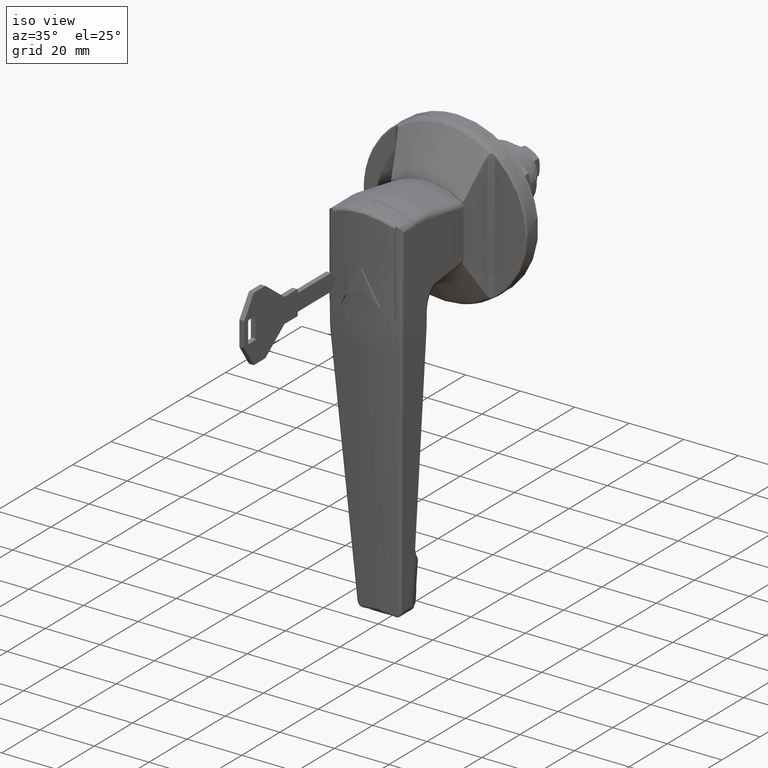
[diagram: clean part render]
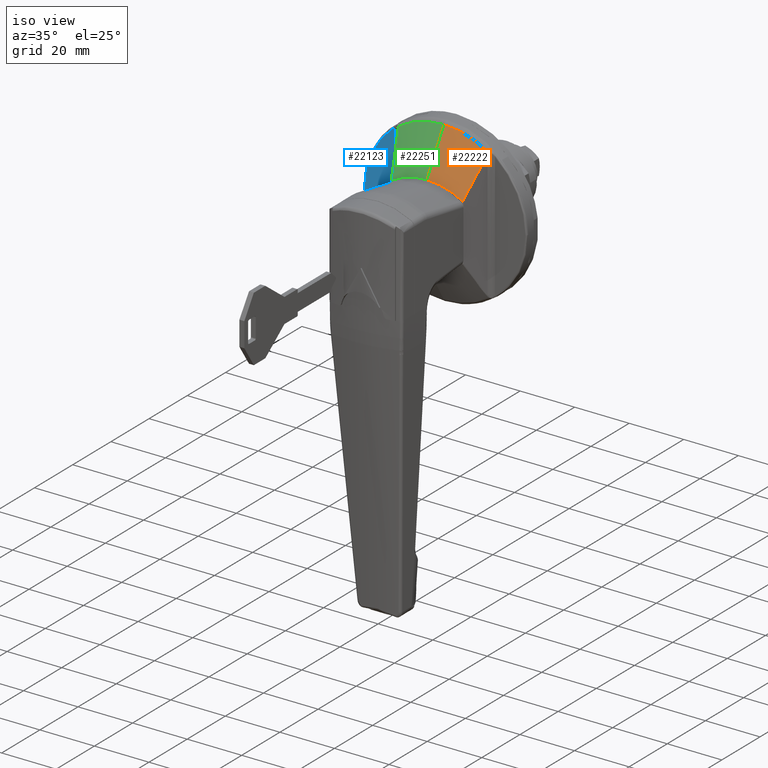
[diagram: same view with three faces highlighted in distinct colors, each labeled with its STEP entity id]
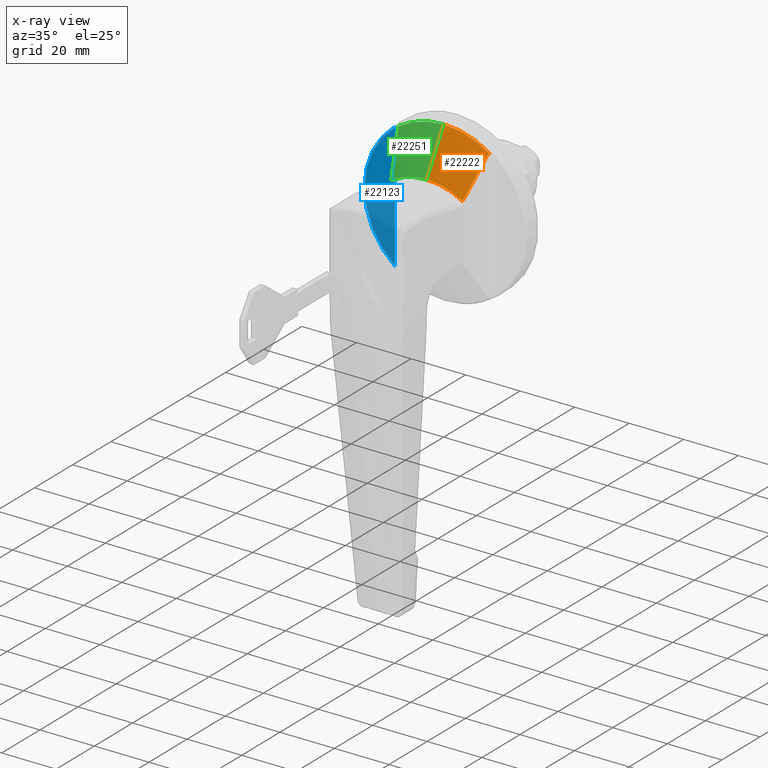
[diagram: x-ray of the same camera — body ghosted, the three highlighted faces saturated]
A machine part, iso view with three faces highlighted in distinct colors.
The next image is the same camera in x-ray (body ghosted, the three faces saturated) — at least one of them is partly hidden behind the body in this view.
Their STEP definitions:

[orange] entity #22222 — the highlighted face is a freeform B-spline surface patch.
#17715=CARTESIAN_POINT('',(-14.479337245030599,-6.288373E-015,14.118387861728261));
#17716=VERTEX_POINT('',#17715);
#17850=CARTESIAN_POINT('',(-14.447015934958740,-13.068452381995820,10.469231712005859));
#17851=VERTEX_POINT('',#17850);
#17865=CARTESIAN_POINT('',(-14.479337245030599,-6.288373E-015,14.118387861728261));
#17866=CARTESIAN_POINT('',(-14.479337263543490,-0.035735273126153,14.118387830712260));
#17867=CARTESIAN_POINT('',(-14.479336690088770,-0.071866858965892,14.118311511213809));
#17868=CARTESIAN_POINT('',(-14.479334467533681,-0.143709660119662,14.118006255532070));
#17869=CARTESIAN_POINT('',(-14.479329464685810,-0.251449471991203,14.117319539753540));
#17870=CARTESIAN_POINT('',(-14.479306078438640,-0.502671796708027,14.114116872654440));
#17871=CARTESIAN_POINT('',(-14.479212204205970,-1.004435341373926,14.101321233102651));
#17872=CARTESIAN_POINT('',(-14.479050111090681,-1.433354460517446,14.079433353181891));
#17873=CARTESIAN_POINT('',(-14.478614197807911,-2.289646584819604,14.021151579628819));
#17874=CARTESIAN_POINT('',(-14.478174892060700,-2.858448072226607,13.962970314704380));
#17875=CARTESIAN_POINT('',(-14.476977723609391,-3.991925136059909,13.807897652704460));
#17876=CARTESIAN_POINT('',(-14.476219934430960,-4.556600865009573,13.711007686155391));
#17877=CARTESIAN_POINT('',(-14.474821384778901,-5.400476907076799,13.536235746365040));
#17878=CARTESIAN_POINT('',(-14.474311614224041,-5.681111668699575,13.473087205553330));
#17879=CARTESIAN_POINT('',(-14.473203641887091,-6.239593992173101,13.337327171529310));
#17880=CARTESIAN_POINT('',(-14.472605111653641,-6.517647948377238,13.264674380472769));
#17881=CARTESIAN_POINT('',(-14.470669478754260,-7.348244417503577,13.032382528664600));
#17882=CARTESIAN_POINT('',(-14.469198614541320,-7.894461306897749,12.859186390527389));
#17883=CARTESIAN_POINT('',(-14.465875158982330,-8.971000193252996,12.477239018694281));
#17884=CARTESIAN_POINT('',(-14.464022053215210,-9.501519329385047,12.268432055344130));
#17885=CARTESIAN_POINT('',(-14.457845584175249,-11.069998082647750,11.588908147134880));
#17886=CARTESIAN_POINT('',(-14.452904385556350,-12.084994687746880,11.065354308721391));
#17887=CARTESIAN_POINT('',(-14.447015934958740,-13.068452381995820,10.469231712005859));
#17888=B_SPLINE_CURVE_WITH_KNOTS('',3,(#17865,#17866,#17867,#17868,#17869,#17870,#17871,#17872,#17873,#17874,#17875,#17876,#17877,#17878,#17879,#17880,#17881,#17882,#17883,#17884,#17885,#17886,#17887),.UNSPECIFIED.,.F.,.U.,(4,2,1,1,1,2,2,2,2,2,2,2,4),(0.0,0.007812500000000,0.015625000000000,0.031250000000000,0.062500000000000,0.125000000000000,0.250000000000000,0.375000000000000,0.437500000000000,0.500000000000000,0.625000000000000,0.750000000000000,1.0),.UNSPECIFIED.);
#17889=EDGE_CURVE('',#17716,#17851,#17888,.T.);
#19303=CARTESIAN_POINT('',(-5.626412422946280,-16.767151161594299,23.936080246098200));
#19304=VERTEX_POINT('',#19303);
#19675=CARTESIAN_POINT('',(-6.494066737415230,-16.192398107966149,22.909306063417699));
#19676=VERTEX_POINT('',#19675);
#19708=CARTESIAN_POINT('',(-6.494066737415230,-16.192398107966149,22.909306063417699));
#19709=CARTESIAN_POINT('',(-6.424669073770880,-16.220072393999470,23.007775305461841));
#19710=CARTESIAN_POINT('',(-6.354702153840161,-16.251524082387991,23.103856940331362));
#19711=CARTESIAN_POINT('',(-6.213427687926616,-16.323384023525250,23.290366459692439));
#19712=CARTESIAN_POINT('',(-6.142122185501899,-16.363776269459692,23.380804159612389));
#19713=CARTESIAN_POINT('',(-5.997863034308626,-16.455693039438380,23.554667275716920));
#19714=CARTESIAN_POINT('',(-5.924914193083493,-16.507179140138760,23.638116173003048));
#19715=CARTESIAN_POINT('',(-5.813873294990467,-16.595538278010270,23.756303401241482));
#19716=CARTESIAN_POINT('',(-5.776588147323723,-16.626860951215470,23.794525786446361));
#19717=CARTESIAN_POINT('',(-5.701372973897109,-16.694008976117271,23.868152115988060));
#19718=CARTESIAN_POINT('',(-5.663826746573515,-16.729495984640469,23.903176481008401));
#19719=CARTESIAN_POINT('',(-5.626412422946280,-16.767151161594299,23.936080246098200));
#19720=B_SPLINE_CURVE_WITH_KNOTS('',3,(#19708,#19709,#19710,#19711,#19712,#19713,#19714,#19715,#19716,#19717,#19718,#19719),.UNSPECIFIED.,.F.,.U.,(4,2,2,2,2,4),(0.0,0.250000000000001,0.500000000000001,0.750000000000002,0.875000000000001,1.0),.UNSPECIFIED.);
#19721=EDGE_CURVE('',#19676,#19304,#19720,.T.);
#19979=CARTESIAN_POINT('',(-14.447015934958740,-13.068452381995870,10.469231712005850));
#19980=CARTESIAN_POINT('',(-14.071443119798049,-13.217452616591240,10.953572287885930));
#19981=CARTESIAN_POINT('',(-13.713588035917390,-13.358383926442670,11.451621797199790));
#19982=CARTESIAN_POINT('',(-13.020178356388950,-13.630649370214620,12.464831776052421));
#19983=CARTESIAN_POINT('',(-12.684649753828340,-13.761947505672140,12.980018576630330));
#19984=CARTESIAN_POINT('',(-12.026345013776419,-14.019248352972451,14.020127427467941));
#19985=CARTESIAN_POINT('',(-11.703602501037221,-14.145228628753900,14.545077328030491));
#19986=CARTESIAN_POINT('',(-11.063905871242399,-14.394926912533450,15.599359615168821));
#19987=CARTESIAN_POINT('',(-10.746974566038130,-14.518632216727390,16.128722035384321));
#19988=CARTESIAN_POINT('',(-9.796925005214114,-14.889780169889240,17.717167491580060));
#19989=CARTESIAN_POINT('',(-9.164444515341181,-15.137273861161921,18.776859682195120));
#19990=CARTESIAN_POINT('',(-8.190413732009539,-15.520295132090780,20.347239966842459));
#19991=CARTESIAN_POINT('',(-7.861569147511784,-15.649914215912361,20.867540387358950));
#19992=CARTESIAN_POINT('',(-7.190110527857683,-15.915498251099850,21.897722566685211));
#19993=CARTESIAN_POINT('',(-6.847595742775003,-16.051418393352979,22.407679187665849));
#19994=CARTESIAN_POINT('',(-6.494066737415230,-16.192398107966149,22.909306063417699));
#19995=B_SPLINE_CURVE_WITH_KNOTS('',3,(#19979,#19980,#19981,#19982,#19983,#19984,#19985,#19986,#19987,#19988,#19989,#19990,#19991,#19992,#19993,#19994),.UNSPECIFIED.,.F.,.U.,(4,2,2,2,2,2,2,4),(0.0,0.125000000000000,0.250000000000000,0.375000000000000,0.500000000000000,0.750000000000001,0.875000000000000,1.0),.UNSPECIFIED.);
#19996=EDGE_CURVE('',#17851,#19676,#19995,.T.);
#21756=CARTESIAN_POINT('',(-5.581927654844491,-6.288373E-015,29.025042672511301));
#21757=VERTEX_POINT('',#21756);
#21758=CARTESIAN_POINT('',(-5.626412422946288,-16.767151161594288,23.936080246098179));
#21759=CARTESIAN_POINT('',(-5.624726983806986,-16.148189104809092,24.353625687414429));
#21760=CARTESIAN_POINT('',(-5.622789512429399,-15.516525124752629,24.745638578468832));
#21761=CARTESIAN_POINT('',(-5.618614159242171,-14.228671870370730,25.479640812196479));
#21762=CARTESIAN_POINT('',(-5.616376525951550,-13.572435116448551,25.821657167840328));
#21763=CARTESIAN_POINT('',(-5.611742373096118,-12.235463377118240,26.455968960190429));
#21764=CARTESIAN_POINT('',(-5.609350919085951,-11.554714914981609,26.748237079858640));
#21765=CARTESIAN_POINT('',(-5.605679384473238,-10.515020729400520,27.148947327590928));
#21766=CARTESIAN_POINT('',(-5.604443051077740,-10.165362813808940,27.276239616397241));
#21767=CARTESIAN_POINT('',(-5.602592839555324,-9.636198311964764,27.457684701808411));
#21768=CARTESIAN_POINT('',(-5.601976636856387,-9.458975342524969,27.516597614020860));
#21769=CARTESIAN_POINT('',(-5.600753990130843,-9.104284433330642,27.630828670383071));
#21770=CARTESIAN_POINT('',(-5.600146984073732,-8.926656675272799,27.686203215201630));
#21771=CARTESIAN_POINT('',(-5.597142484299140,-8.037120227922880,27.954456620331690));
#21772=CARTESIAN_POINT('',(-5.594837647149470,-7.321025065285979,28.141517611700291));
#21773=CARTESIAN_POINT('',(-5.590635873915720,-5.880149623792579,28.462081562276751));
#21774=CARTESIAN_POINT('',(-5.588738361980969,-5.155368704091980,28.595580561628118));
#21775=CARTESIAN_POINT('',(-5.585542267703501,-3.697213379618401,28.809588163248272));
#21776=CARTESIAN_POINT('',(-5.584242865677550,-2.963838743335603,28.890095326915549));
#21777=CARTESIAN_POINT('',(-5.582887836588102,-1.857295234888901,28.970890450409019));
#21778=CARTESIAN_POINT('',(-5.582535264718668,-1.487366063150442,28.991154582864919));
#21779=CARTESIAN_POINT('',(-5.582175214040379,-0.930836026798620,29.011461644530080));
#21780=CARTESIAN_POINT('',(-5.582037418777160,-0.652161836517862,29.019092259837318));
#21781=CARTESIAN_POINT('',(-5.581955342226830,-0.326321676295324,29.023553577120499));
#21782=CARTESIAN_POINT('',(-5.581934607800917,-0.163220917257886,29.024670208883311));
#21783=CARTESIAN_POINT('',(-5.581930141384058,-0.093281807508102,29.024909629709661));
#21784=CARTESIAN_POINT('',(-5.581928153710429,-0.046647107842052,29.025016054749020));
#21785=CARTESIAN_POINT('',(-5.581927664909836,-0.023119643418672,29.025042655647539));
#21786=CARTESIAN_POINT('',(-5.581927654844491,-6.288373E-015,29.025042672511301));
#21787=B_SPLINE_CURVE_WITH_KNOTS('',3,(#21758,#21759,#21760,#21761,#21762,#21763,#21764,#21765,#21766,#21767,#21768,#21769,#21770,#21771,#21772,#21773,#21774,#21775,#21776,#21777,#21778,#21779,#21780,#21781,#21782,#21783,#21784,#21785,#21786),.UNSPECIFIED.,.F.,.U.,(4,2,2,2,2,2,2,2,2,2,2,1,1,1,2,4),(0.0,0.125000000000000,0.249999999999999,0.374999999999999,0.437499999999999,0.468749999999999,0.499999999999999,0.624999999999999,0.749999999999999,0.875000000000000,0.937500000000000,0.968750000000000,0.984375000000000,0.992187500000000,0.996093750000000,1.0),.UNSPECIFIED.);
#21788=EDGE_CURVE('',#19304,#21757,#21787,.T.);
#22190=CARTESIAN_POINT('',(-14.532721702582300,-1.734813E-015,14.028947932846179));
#22191=CARTESIAN_POINT('',(-11.531328867489391,-1.765828E-015,19.057459489022811));
#22192=CARTESIAN_POINT('',(-8.529936032396112,-9.863557E-015,24.085971045199390));
#22193=CARTESIAN_POINT('',(-5.528543197303158,-1.076142E-014,29.114482601376011));
#22194=CARTESIAN_POINT('',(-14.532721702582300,-2.388344565596300,14.028947932846179));
#22195=CARTESIAN_POINT('',(-11.531328867489391,-2.890736111928984,19.057459489022811));
#22196=CARTESIAN_POINT('',(-8.529936032396112,-3.862540520718953,24.085971045199390));
#22197=CARTESIAN_POINT('',(-5.528543197303158,-3.968759771309034,29.114482601376011));
#22198=CARTESIAN_POINT('',(-14.532721702582300,-6.995748806893610,13.357207755784380));
#22199=CARTESIAN_POINT('',(-11.531328867489361,-8.321017822317584,18.012822210968331));
#22200=CARTESIAN_POINT('',(-8.529936032396078,-11.175738348988530,23.037453031837629));
#22201=CARTESIAN_POINT('',(-5.528543197303102,-11.613288624611460,27.636133909895189));
#22202=CARTESIAN_POINT('',(-14.532721702582300,-11.175390397023580,11.501370455693230));
#22203=CARTESIAN_POINT('',(-11.531328867489300,-13.018076428494281,15.292721152788550));
#22204=CARTESIAN_POINT('',(-8.529936032396037,-17.087709178349680,19.538301417988691));
#22205=CARTESIAN_POINT('',(-5.528543197303003,-18.076337027491419,23.459602483717561));
#22206=CARTESIAN_POINT('',(-14.532721702582290,-13.079241137636220,10.331886923993210));
#22207=CARTESIAN_POINT('',(-11.531328867489270,-15.108740564520859,13.636701333858831));
#22208=CARTESIAN_POINT('',(-8.529936032396014,-19.420936087994420,17.464166185532850));
#22209=CARTESIAN_POINT('',(-5.528543197302953,-20.773311134403301,20.852174061432621));
#22210=B_SPLINE_SURFACE_WITH_KNOTS('',3,3,((#22190,#22194,#22198,#22202,#22206),(#22191,#22195,#22199,#22203,#22207),(#22192,#22196,#22200,#22204,#22208),(#22193,#22197,#22201,#22205,#22209)),.UNSPECIFIED.,.F.,.F.,.U.,(4,4),(4,1,4),(0.0,17.579778096460370),(0.0,11.906279313927071,23.484874489073871),.UNSPECIFIED.);
#22211=CARTESIAN_POINT('',(-5.581927654844491,-6.288373E-015,29.025042672511301));
#22212=CARTESIAN_POINT('',(-14.479337245030599,-6.288373E-015,14.118387861728261));
#22213=QUASI_UNIFORM_CURVE('',1,(#22211,#22212),.UNSPECIFIED.,.F.,.U.);
#22214=EDGE_CURVE('',#21757,#17716,#22213,.T.);
#22215=ORIENTED_EDGE('',*,*,#22214,.T.);
#22216=ORIENTED_EDGE('',*,*,#17889,.T.);
#22217=ORIENTED_EDGE('',*,*,#19996,.T.);
#22218=ORIENTED_EDGE('',*,*,#19721,.T.);
#22219=ORIENTED_EDGE('',*,*,#21788,.T.);
#22220=EDGE_LOOP('',(#22215,#22216,#22217,#22218,#22219));
#22221=FACE_OUTER_BOUND('',#22220,.T.);
#22222=ADVANCED_FACE('',(#22221),#22210,.F.);

[blue] entity #22123 — the highlighted face is a freeform B-spline surface patch.
#18060=CARTESIAN_POINT('',(-4.999999999999890,18.363324249961149,23.008781742512902));
#18061=VERTEX_POINT('',#18060);
#18354=CARTESIAN_POINT('',(-4.999999999999890,29.487258555938499,-0.000188778149250));
#18355=VERTEX_POINT('',#18354);
#18369=CARTESIAN_POINT('',(-4.999999999999890,18.363324249961149,23.008781742512902));
#18370=CARTESIAN_POINT('',(-4.999999999999890,19.233466616690730,22.321083957854931));
#18371=CARTESIAN_POINT('',(-4.999999999999896,20.059096934249720,21.588531579325721));
#18372=CARTESIAN_POINT('',(-4.999999999999896,21.231833524156158,20.423488459077898));
#18373=CARTESIAN_POINT('',(-4.999999999999894,21.611769464047541,20.024080027251792));
#18374=CARTESIAN_POINT('',(-4.999999999999894,22.349546607538642,19.202998396159689));
#18375=CARTESIAN_POINT('',(-4.999999999999894,22.707501091525899,18.781181590726050));
#18376=CARTESIAN_POINT('',(-4.999999999999895,23.747021182880520,17.482695182936311));
#18377=CARTESIAN_POINT('',(-4.999999999999895,24.384096463364049,16.585970406472569));
#18378=CARTESIAN_POINT('',(-4.999999999999896,25.550858449590638,14.732878884588031));
#18379=CARTESIAN_POINT('',(-4.999999999999895,26.080536018662340,13.776507064799970));
#18380=CARTESIAN_POINT('',(-4.999999999999896,27.033067111924250,11.804434987500500));
#18381=CARTESIAN_POINT('',(-4.999999999999895,27.456067954876691,10.788597995759440));
#18382=CARTESIAN_POINT('',(-4.999999999999894,28.191244917952702,8.696251232999728));
#18383=CARTESIAN_POINT('',(-4.999999999999895,28.497142604017242,7.637385124288821));
#18384=CARTESIAN_POINT('',(-4.999999999999894,28.988574643998788,5.494888451426293));
#18385=CARTESIAN_POINT('',(-4.999999999999897,29.174104320929029,4.411256924996301));
#18386=CARTESIAN_POINT('',(-4.999999999999895,29.329938231705430,3.041064620030847));
#18387=CARTESIAN_POINT('',(-4.999999999999893,29.357290421253481,2.766241316121225));
#18388=CARTESIAN_POINT('',(-4.999999999999894,29.404300836577331,2.215011694442182));
#18389=CARTESIAN_POINT('',(-4.999999999999894,29.423968976621950,1.938385972795003));
#18390=CARTESIAN_POINT('',(-4.999999999999893,29.471201260072242,1.108248944463936));
#18391=CARTESIAN_POINT('',(-4.999999999999889,29.487047559838750,0.554294729088390));
#18392=CARTESIAN_POINT('',(-4.999999999999890,29.487258555938499,-0.000188778149250));
#18393=B_SPLINE_CURVE_WITH_KNOTS('',3,(#18369,#18370,#18371,#18372,#18373,#18374,#18375,#18376,#18377,#18378,#18379,#18380,#18381,#18382,#18383,#18384,#18385,#18386,#18387,#18388,#18389,#18390,#18391,#18392),.UNSPECIFIED.,.F.,.U.,(4,2,2,2,2,2,2,2,2,2,2,4),(0.0,0.125000000000000,0.187500000000000,0.250000000000000,0.375000000000000,0.500000000000000,0.625000000000000,0.750000000000000,0.875000000000000,0.906250000000000,0.937500000000000,1.0),.UNSPECIFIED.);
#18394=EDGE_CURVE('',#18061,#18355,#18393,.T.);
#18680=CARTESIAN_POINT('',(-4.999999999999890,18.363324249961149,-23.008781742512902));
#18681=VERTEX_POINT('',#18680);
#18695=CARTESIAN_POINT('',(-4.999999999999890,29.487258555938499,-0.000188778149250));
#18696=CARTESIAN_POINT('',(-4.999999999999891,29.486821688985788,-1.110112377799725));
#18697=CARTESIAN_POINT('',(-4.999999999999895,29.423879004170050,-2.215571534552244));
#18698=CARTESIAN_POINT('',(-4.999999999999897,29.267284745986370,-3.591830380987822));
#18699=CARTESIAN_POINT('',(-4.999999999999895,29.232059056050179,-3.866803106545957));
#18700=CARTESIAN_POINT('',(-4.999999999999895,29.153754912873321,-4.416187678458297));
#18701=CARTESIAN_POINT('',(-4.999999999999896,29.110795439100151,-4.689756295720274));
#18702=CARTESIAN_POINT('',(-4.999999999999894,28.970699157898480,-5.506738066961651));
#18703=CARTESIAN_POINT('',(-4.999999999999895,28.862328280084451,-6.046605586374022));
#18704=CARTESIAN_POINT('',(-4.999999999999895,28.493143823354210,-7.652118345880139));
#18705=CARTESIAN_POINT('',(-4.999999999999895,28.188385949239262,-8.703714558079643));
#18706=CARTESIAN_POINT('',(-4.999999999999894,27.462897545383850,-10.769830427570110));
#18707=CARTESIAN_POINT('',(-4.999999999999895,27.042258908271421,-11.784379463011049));
#18708=CARTESIAN_POINT('',(-4.999999999999895,26.441849060970021,-13.028712382141689));
#18709=CARTESIAN_POINT('',(-4.999999999999895,26.317967046201471,-13.276484505345371));
#18710=CARTESIAN_POINT('',(-4.999999999999895,26.062820493181050,-13.769168624194540));
#18711=CARTESIAN_POINT('',(-4.999999999999893,25.932060382850889,-14.013113821776720));
#18712=CARTESIAN_POINT('',(-4.999999999999897,25.530329340592122,-14.737841403719360));
#18713=CARTESIAN_POINT('',(-4.999999999999895,25.249914917549312,-15.211521207653760));
#18714=CARTESIAN_POINT('',(-4.999999999999896,24.371495680638880,-16.604600059332029));
#18715=CARTESIAN_POINT('',(-4.999999999999895,23.736418165624968,-17.496116215217562));
#18716=CARTESIAN_POINT('',(-4.999999999999894,22.367919562798800,-19.205182964175169));
#18717=CARTESIAN_POINT('',(-4.999999999999895,21.634500334961938,-20.022734956160519));
#18718=CARTESIAN_POINT('',(-4.999999999999894,20.654551257312260,-20.997160121660379));
#18719=CARTESIAN_POINT('',(-4.999999999999895,20.455277257750240,-21.189771017771221));
#18720=CARTESIAN_POINT('',(-4.999999999999895,20.050822781362861,-21.569686918717519));
#18721=CARTESIAN_POINT('',(-4.999999999999897,19.846008926540879,-21.756654073061981));
#18722=CARTESIAN_POINT('',(-4.999999999999893,19.223831289775109,-22.308610640731910));
#18723=CARTESIAN_POINT('',(-4.999999999999892,18.798737671873070,-22.664662369513561));
#18724=CARTESIAN_POINT('',(-4.999999999999890,18.363324249961199,-23.008781742512902));
#18725=B_SPLINE_CURVE_WITH_KNOTS('',3,(#18695,#18696,#18697,#18698,#18699,#18700,#18701,#18702,#18703,#18704,#18705,#18706,#18707,#18708,#18709,#18710,#18711,#18712,#18713,#18714,#18715,#18716,#18717,#18718,#18719,#18720,#18721,#18722,#18723,#18724),.UNSPECIFIED.,.F.,.U.,(4,2,2,2,2,2,2,2,2,2,2,2,2,2,4),(0.0,0.125000000000000,0.156250000000000,0.187500000000000,0.250000000000000,0.375000000000000,0.500000000000000,0.531250000000000,0.562500000000001,0.625000000000001,0.750000000000001,0.875000000000001,0.906250000000001,0.937500000000001,1.0),.UNSPECIFIED.);
#18726=EDGE_CURVE('',#18355,#18681,#18725,.T.);
#20487=CARTESIAN_POINT('',(-4.999999999999890,18.363324249961149,-23.008781742512902));
#20488=CARTESIAN_POINT('',(-4.999999999999890,18.363324249961149,23.008781742512902));
#20489=QUASI_UNIFORM_CURVE('',1,(#20487,#20488),.UNSPECIFIED.,.F.,.U.);
#20490=EDGE_CURVE('',#18681,#18061,#20489,.T.);
#22113=CARTESIAN_POINT('',(-4.999999999999890,17.807684588326211,25.307358949398971));
#22114=CARTESIAN_POINT('',(-4.999999999999890,17.807684588326211,-25.307360183686210));
#22115=CARTESIAN_POINT('',(-4.999999999999890,30.042899311586389,25.307358949398971));
#22116=CARTESIAN_POINT('',(-4.999999999999890,30.042899311586389,-25.307360183686210));
#22117=B_SPLINE_SURFACE_WITH_KNOTS('',1,1,((#22113,#22115),(#22114,#22116)),.UNSPECIFIED.,.F.,.F.,.U.,(2,2),(2,2),(0.0,50.614719133085181),(0.0,12.235214723260169),.UNSPECIFIED.);
#22118=ORIENTED_EDGE('',*,*,#20490,.T.);
#22119=ORIENTED_EDGE('',*,*,#18394,.T.);
#22120=ORIENTED_EDGE('',*,*,#18726,.T.);
#22121=EDGE_LOOP('',(#22118,#22119,#22120));
#22122=FACE_OUTER_BOUND('',#22121,.T.);
#22123=ADVANCED_FACE('',(#22122),#22117,.F.);

[green] entity #22251 — the highlighted face is a freeform B-spline surface patch.
#17579=CARTESIAN_POINT('',(-14.447015934959060,13.068452381995700,10.469231712005460));
#17580=VERTEX_POINT('',#17579);
#17715=CARTESIAN_POINT('',(-14.479337245030599,-6.288373E-015,14.118387861728261));
#17716=VERTEX_POINT('',#17715);
#17730=CARTESIAN_POINT('',(-14.447015934959060,13.068452381995700,10.469231712005460));
#17731=CARTESIAN_POINT('',(-14.452904453134799,12.084983401151050,11.065361150088330));
#17732=CARTESIAN_POINT('',(-14.457857329562090,11.067986019904790,11.590120664142040));
#17733=CARTESIAN_POINT('',(-14.464053613235359,9.493015129223753,12.271944438105001));
#17734=CARTESIAN_POINT('',(-14.465913770357799,8.959748632535682,12.481601732918501));
#17735=CARTESIAN_POINT('',(-14.468416149448551,8.147265066074017,12.769300648675420));
#17736=CARTESIAN_POINT('',(-14.469201592716830,7.874533017341017,12.860654667345489));
#17737=CARTESIAN_POINT('',(-14.470675473339609,7.326503181887724,13.033845759545409));
#17738=CARTESIAN_POINT('',(-14.471364464236270,7.051025589422314,13.115747508796840));
#17739=CARTESIAN_POINT('',(-14.473293337909359,6.220198035850509,13.347349647909279));
#17740=CARTESIAN_POINT('',(-14.474388711787610,5.663431006358281,13.482127308393549));
#17741=CARTESIAN_POINT('',(-14.476236198325930,4.544854073536093,13.713079970236960));
#17742=CARTESIAN_POINT('',(-14.476988483598980,3.982943052118492,13.809281186524251));
#17743=CARTESIAN_POINT('',(-14.478178389440391,2.853916787055527,13.963433702186030));
#17744=CARTESIAN_POINT('',(-14.478615945400961,2.286801417575967,14.021384077157389));
#17745=CARTESIAN_POINT('',(-14.479050544705490,1.432207485679705,14.079491908428190));
#17746=CARTESIAN_POINT('',(-14.479158390116250,1.146688872980257,14.094054635667311));
#17747=CARTESIAN_POINT('',(-14.479265903751431,0.717423432857389,14.108640615304649));
#17748=CARTESIAN_POINT('',(-14.479306092115250,0.502543787086686,14.114118743354080));
#17749=CARTESIAN_POINT('',(-14.479329466429540,0.251416828208368,14.117319778963360));
#17750=CARTESIAN_POINT('',(-14.479334467977219,0.143697743788904,14.118006316431339));
#17751=CARTESIAN_POINT('',(-14.479336690093870,0.071864272615657,14.118311511933490));
#17752=CARTESIAN_POINT('',(-14.479337263544959,0.035738129868954,14.118387830709770));
#17753=CARTESIAN_POINT('',(-14.479337245030599,-6.288373E-015,14.118387861728261));
#17754=B_SPLINE_CURVE_WITH_KNOTS('',3,(#17730,#17731,#17732,#17733,#17734,#17735,#17736,#17737,#17738,#17739,#17740,#17741,#17742,#17743,#17744,#17745,#17746,#17747,#17748,#17749,#17750,#17751,#17752,#17753),.UNSPECIFIED.,.F.,.U.,(4,2,2,2,2,2,2,2,2,1,1,2,4),(0.0,0.250000000000000,0.375000000000000,0.437500000000000,0.500000000000000,0.625000000000000,0.750000000000000,0.875000000000000,0.937500000000000,0.968750000000000,0.984375000000000,0.992187500000000,1.0),.UNSPECIFIED.);
#17755=EDGE_CURVE('',#17580,#17716,#17754,.T.);
#18106=CARTESIAN_POINT('',(-5.626412422946290,16.767151161594398,23.936080246098101));
#18107=VERTEX_POINT('',#18106);
#18209=CARTESIAN_POINT('',(-6.494066737415230,16.192398107966149,22.909306063417699));
#18210=VERTEX_POINT('',#18209);
#18224=CARTESIAN_POINT('',(-5.626412422946290,16.767151161594398,23.936080246098101));
#18225=CARTESIAN_POINT('',(-5.701179247987979,16.691903027877949,23.870327085030741));
#18226=CARTESIAN_POINT('',(-5.775171837285711,16.626473172763049,23.797372907431559));
#18227=CARTESIAN_POINT('',(-5.922008928866581,16.509356446154278,23.641327322183081));
#18228=CARTESIAN_POINT('',(-5.994849072822555,16.457746496215680,23.558181029173010));
#18229=CARTESIAN_POINT('',(-6.139605225384435,16.365251905161742,23.383951899833161));
#18230=CARTESIAN_POINT('',(-6.211661142719323,16.324324716084039,23.292660850278448));
#18231=CARTESIAN_POINT('',(-6.354361075104992,16.251656060577730,23.104344465514870));
#18232=CARTESIAN_POINT('',(-6.424650064081426,16.220079974652130,23.007802278555939));
#18233=CARTESIAN_POINT('',(-6.494066737415230,16.192398107966149,22.909306063417699));
#18234=B_SPLINE_CURVE_WITH_KNOTS('',3,(#18224,#18225,#18226,#18227,#18228,#18229,#18230,#18231,#18232,#18233),.UNSPECIFIED.,.F.,.U.,(4,2,2,2,4),(0.0,0.250000000000000,0.500000000000000,0.750000000000000,1.0),.UNSPECIFIED.);
#18235=EDGE_CURVE('',#18107,#18210,#18234,.T.);
#18527=CARTESIAN_POINT('',(-6.494066737415230,16.192398107966149,22.909306063417699));
#18528=CARTESIAN_POINT('',(-6.847581161754571,16.051424207948308,22.407699876864228));
#18529=CARTESIAN_POINT('',(-7.190086534215011,15.915507769221250,21.897758404593350));
#18530=CARTESIAN_POINT('',(-7.861531647789544,15.649929020447990,20.867598895262962));
#18531=CARTESIAN_POINT('',(-8.190372226086977,15.520311481819840,20.347305977151251));
#18532=CARTESIAN_POINT('',(-9.164395359823406,15.137293134308560,18.776940748108949));
#18533=CARTESIAN_POINT('',(-9.796872377349965,14.889800752876910,17.717255627446900));
#18534=CARTESIAN_POINT('',(-10.746922248787451,14.518652643424581,16.128809435701211));
#18535=CARTESIAN_POINT('',(-11.063841172306200,14.394952167077181,15.599466198160011));
#18536=CARTESIAN_POINT('',(-11.703673515797281,14.145200908899570,14.544960335947749));
#18537=CARTESIAN_POINT('',(-12.026624893231009,14.019139140465100,14.019669398563760));
#18538=CARTESIAN_POINT('',(-12.685395402970810,13.761655886247270,12.978856314692701));
#18539=CARTESIAN_POINT('',(-13.021068982113690,13.630300431800610,12.463489181399360));
#18540=CARTESIAN_POINT('',(-13.714399650679271,13.358064482836280,11.450477179958920));
#18541=CARTESIAN_POINT('',(-14.072035390993340,13.217217646051621,10.952808491998050));
#18542=CARTESIAN_POINT('',(-14.447015934959060,13.068452381995700,10.469231712005460));
#18543=B_SPLINE_CURVE_WITH_KNOTS('',3,(#18527,#18528,#18529,#18530,#18531,#18532,#18533,#18534,#18535,#18536,#18537,#18538,#18539,#18540,#18541,#18542),.UNSPECIFIED.,.F.,.U.,(4,2,2,2,2,2,2,4),(0.0,0.125000000000000,0.250000000000000,0.500000000000000,0.625000000000000,0.750000000000000,0.875000000000000,1.0),.UNSPECIFIED.);
#18544=EDGE_CURVE('',#18210,#17580,#18543,.T.);
#21756=CARTESIAN_POINT('',(-5.581927654844491,-6.288373E-015,29.025042672511301));
#21757=VERTEX_POINT('',#21756);
#22051=CARTESIAN_POINT('',(-5.581927654844491,-6.288373E-015,29.025042672511301));
#22052=CARTESIAN_POINT('',(-5.581927659856554,0.011512650887856,29.025042664113780));
#22053=CARTESIAN_POINT('',(-5.581927779553879,0.023324100175490,29.025036018466189));
#22054=CARTESIAN_POINT('',(-5.581928277443790,0.046645747526938,29.025009406580558));
#22055=CARTESIAN_POINT('',(-5.581929396969230,0.081624982760675,29.024949533939200));
#22056=CARTESIAN_POINT('',(-5.581934607766741,0.163220558035848,29.024670210718821));
#22057=CARTESIAN_POINT('',(-5.581955342143155,0.326321228563976,29.023553581643220));
#22058=CARTESIAN_POINT('',(-5.582037418569161,0.652161279638860,29.019092271226530));
#22059=CARTESIAN_POINT('',(-5.582358978362679,1.302400971505654,29.001286672804341));
#22060=CARTESIAN_POINT('',(-5.582887836484558,1.857295227845855,28.970890457294811));
#22061=CARTESIAN_POINT('',(-5.584242867803530,2.963840324446815,28.890095198726449));
#22062=CARTESIAN_POINT('',(-5.585542273513687,3.697216806318362,28.809587810022840));
#22063=CARTESIAN_POINT('',(-5.588738382590994,5.155377331088806,28.595579145779610));
#22064=CARTESIAN_POINT('',(-5.590635905650044,5.880161605613004,28.462079309822151));
#22065=CARTESIAN_POINT('',(-5.594837709143465,7.321045224828663,28.141512713380219));
#22066=CARTESIAN_POINT('',(-5.597142565456415,8.037145210441212,27.954449913968158));
#22067=CARTESIAN_POINT('',(-5.600147092678719,8.926688591105092,27.686193383594208));
#22068=CARTESIAN_POINT('',(-5.600754104391366,9.104317781102244,27.630818170287050));
#22069=CARTESIAN_POINT('',(-5.601976762684309,9.459011644585507,27.516585682781869));
#22070=CARTESIAN_POINT('',(-5.602592969250960,9.636235537427929,27.457672186318341));
#22071=CARTESIAN_POINT('',(-5.604443164827869,10.165395082086150,27.276228054380741));
#22072=CARTESIAN_POINT('',(-5.605679487744554,10.515049950866320,27.148936445059910));
#22073=CARTESIAN_POINT('',(-5.609350992431842,11.554735730044669,26.748228297923092));
#22074=CARTESIAN_POINT('',(-5.611742429704359,12.235479566789310,26.455961660580300));
#22075=CARTESIAN_POINT('',(-5.616376555649070,13.572443826341649,25.821652654114299));
#22076=CARTESIAN_POINT('',(-5.618614178666449,14.228677724726531,25.479637601762089));
#22077=CARTESIAN_POINT('',(-5.622789517668183,15.516526877511801,24.745637453284790));
#22078=CARTESIAN_POINT('',(-5.624726985215101,16.148189621924701,24.353625338573540));
#22079=CARTESIAN_POINT('',(-5.626412422946290,16.767151161594398,23.936080246098090));
#22080=B_SPLINE_CURVE_WITH_KNOTS('',3,(#22051,#22052,#22053,#22054,#22055,#22056,#22057,#22058,#22059,#22060,#22061,#22062,#22063,#22064,#22065,#22066,#22067,#22068,#22069,#22070,#22071,#22072,#22073,#22074,#22075,#22076,#22077,#22078,#22079),.UNSPECIFIED.,.F.,.U.,(4,2,1,1,1,1,1,2,2,2,2,2,2,2,2,2,4),(0.0,0.001953125000000,0.003906250000000,0.007812500000000,0.015625000000000,0.031250000000000,0.062500000000000,0.125000000000001,0.250000000000001,0.375000000000002,0.500000000000003,0.531250000000003,0.562500000000003,0.625000000000002,0.750000000000002,0.875000000000001,1.0),.UNSPECIFIED.);
#22081=EDGE_CURVE('',#21757,#18107,#22080,.T.);
#22211=CARTESIAN_POINT('',(-5.581927654844491,-6.288373E-015,29.025042672511301));
#22212=CARTESIAN_POINT('',(-14.479337245030599,-6.288373E-015,14.118387861728261));
#22213=QUASI_UNIFORM_CURVE('',1,(#22211,#22212),.UNSPECIFIED.,.F.,.U.);
#22214=EDGE_CURVE('',#21757,#17716,#22213,.T.);
#22223=CARTESIAN_POINT('',(-5.528543197303156,-1.076142E-014,29.114482601376000));
#22224=CARTESIAN_POINT('',(-8.529936032396110,-9.863557E-015,24.085971045199390));
#22225=CARTESIAN_POINT('',(-11.531328867489391,-1.765828E-015,19.057459489022811));
#22226=CARTESIAN_POINT('',(-14.532721702582300,-1.734813E-015,14.028947932846179));
#22227=CARTESIAN_POINT('',(-5.528543197303156,3.968759771309023,29.114482601376011));
#22228=CARTESIAN_POINT('',(-8.529936032396110,3.862540520718945,24.085971045199429));
#22229=CARTESIAN_POINT('',(-11.531328867489391,2.890736111928990,19.057459489022811));
#22230=CARTESIAN_POINT('',(-14.532721702582300,2.388344565596305,14.028947932846179));
#22231=CARTESIAN_POINT('',(-5.528543197303103,11.613288624612011,27.636133909895090));
#22232=CARTESIAN_POINT('',(-8.529936032396087,11.175738348989050,23.037453031837600));
#22233=CARTESIAN_POINT('',(-11.531328867489361,8.321017822317973,18.012822210968270));
#22234=CARTESIAN_POINT('',(-14.532721702582300,6.995748806893944,13.357207755784311));
#22235=CARTESIAN_POINT('',(-5.528543197303005,18.076337027492301,23.459602483716989));
#22236=CARTESIAN_POINT('',(-8.529936032396046,17.087709178350490,19.538301417988201));
#22237=CARTESIAN_POINT('',(-11.531328867489300,13.018076428494950,15.292721152788131));
#22238=CARTESIAN_POINT('',(-14.532721702582300,11.175390397024190,11.501370455692950));
#22239=CARTESIAN_POINT('',(-5.528543197302955,20.773311134404420,20.852174061431541));
#22240=CARTESIAN_POINT('',(-8.529936032396018,19.420936087995400,17.464166185531990));
#22241=CARTESIAN_POINT('',(-11.531328867489270,15.108740564521771,13.636701333858110));
#22242=CARTESIAN_POINT('',(-14.532721702582290,13.079241137637030,10.331886923992700));
#22243=B_SPLINE_SURFACE_WITH_KNOTS('',3,3,((#22223,#22227,#22231,#22235,#22239),(#22224,#22228,#22232,#22236,#22240),(#22225,#22229,#22233,#22237,#22241),(#22226,#22230,#22234,#22238,#22242)),.UNSPECIFIED.,.F.,.F.,.U.,(4,4),(4,1,4),(0.0,17.579778096460402),(0.0,11.906279313927101,23.484874489075541),.UNSPECIFIED.);
#22244=ORIENTED_EDGE('',*,*,#18544,.T.);
#22245=ORIENTED_EDGE('',*,*,#17755,.T.);
#22246=ORIENTED_EDGE('',*,*,#22214,.F.);
#22247=ORIENTED_EDGE('',*,*,#22081,.T.);
#22248=ORIENTED_EDGE('',*,*,#18235,.T.);
#22249=EDGE_LOOP('',(#22244,#22245,#22246,#22247,#22248));
#22250=FACE_OUTER_BOUND('',#22249,.T.);
#22251=ADVANCED_FACE('',(#22250),#22243,.F.);